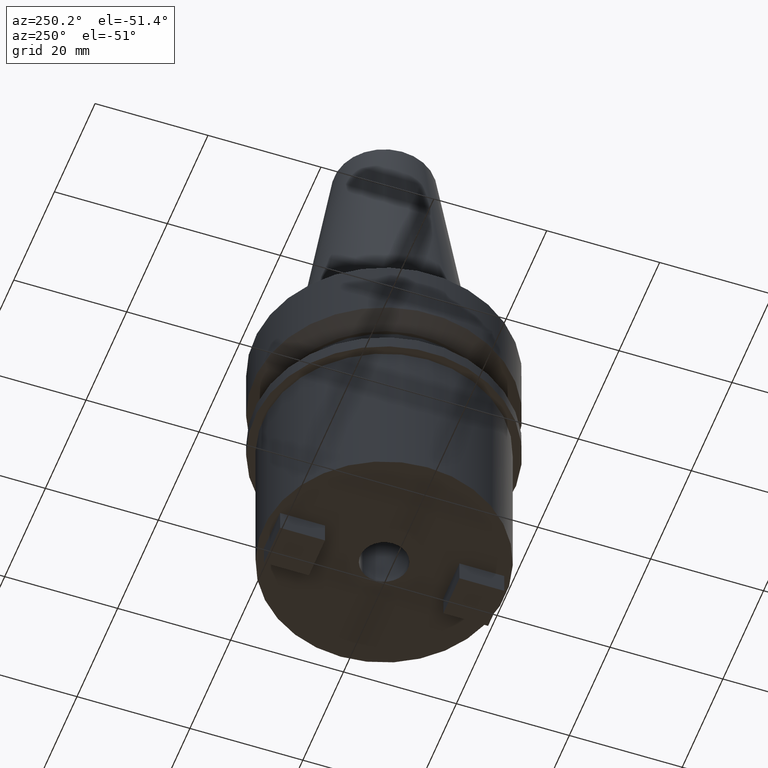
[diagram: clean part render]
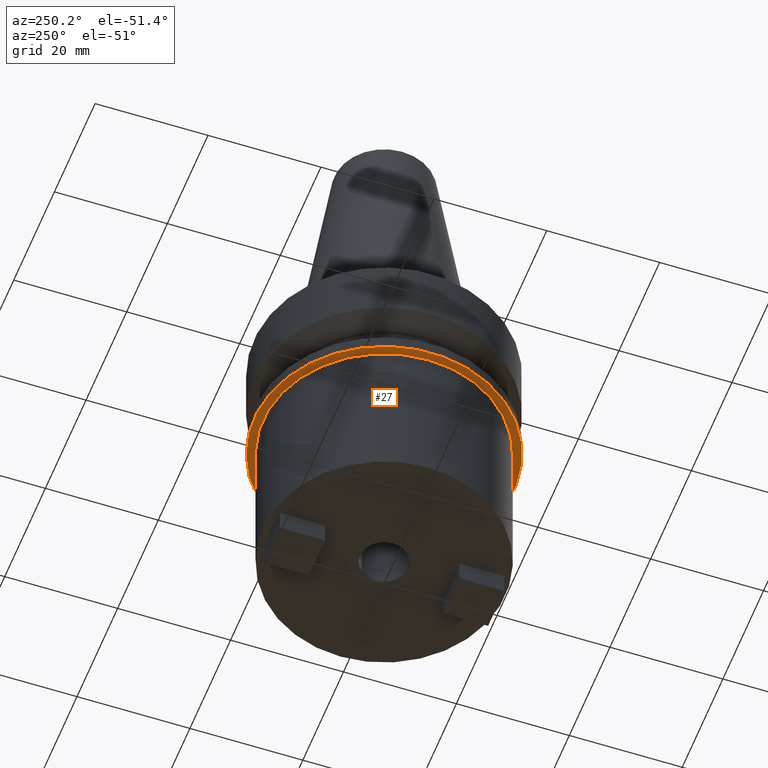
[diagram: same view with one face highlighted and labeled with its STEP entity id]
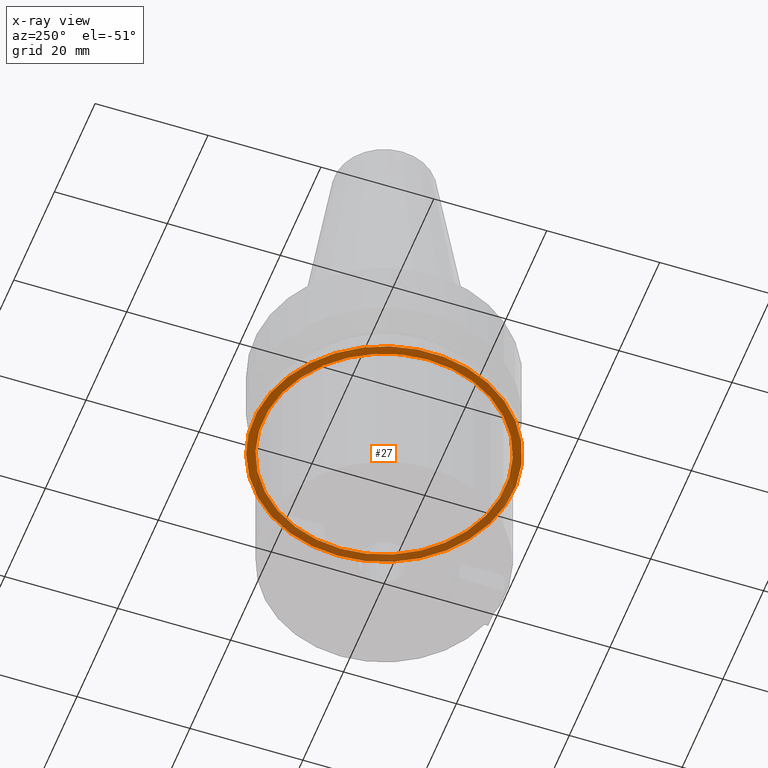
[diagram: x-ray of the same camera — body ghosted, the highlighted face saturated]
A machine part, auxiliary view. The second image highlights one B-rep face of the part: STEP entity #27.
The next image is the same camera in x-ray: the body ghosted, the highlighted face saturated — about 41% of this face is hidden behind the body in this view.
In plain terms, the highlighted planar face has unit normal (0, -0, 1).
Its self-contained STEP definition (entity closure, byte-faithful):
#16 = DIRECTION ( 'NONE',  ( 0.000000000000000000, 0.000000000000000000, -1.000000000000000000 ) ) ;
#27 = ADVANCED_FACE ( 'NONE', ( #501, #495 ), #453, .F. ) ;
#46 = VERTEX_POINT ( 'NONE', #304 ) ;
#71 = CARTESIAN_POINT ( 'NONE',  ( 0.000000000000000000, 22.99999999999998934, -22.00000000000000000 ) ) ;
#76 = DIRECTION ( 'NONE',  ( 1.000000000000000000, 0.000000000000000000, 0.000000000000000000 ) ) ;
#91 = EDGE_CURVE ( 'NONE', #364, #364, #188, .T. ) ;
#157 = EDGE_LOOP ( 'NONE', ( #667 ) ) ;
#186 = EDGE_CURVE ( 'NONE', #46, #46, #422, .T. ) ;
#188 = CIRCLE ( 'NONE', #548, 21.44999999999999929 ) ;
#193 = EDGE_LOOP ( 'NONE', ( #306 ) ) ;
#240 = CARTESIAN_POINT ( 'NONE',  ( 0.000000000000000000, 0.000000000000000000, -21.99999999999999289 ) ) ;
#243 = CARTESIAN_POINT ( 'NONE',  ( 0.000000000000000000, 0.000000000000000000, -22.00000000000000000 ) ) ;
#245 = AXIS2_PLACEMENT_3D ( 'NONE', #71, #492, #394 ) ;
#304 = CARTESIAN_POINT ( 'NONE',  ( 22.99999999999998934, 0.000000000000000000, -21.99999999999999289 ) ) ;
#306 = ORIENTED_EDGE ( 'NONE', *, *, #91, .F. ) ;
#364 = VERTEX_POINT ( 'NONE', #403 ) ;
#394 = DIRECTION ( 'NONE',  ( 1.000000000000000000, 0.000000000000000000, 0.000000000000000000 ) ) ;
#403 = CARTESIAN_POINT ( 'NONE',  ( 21.44999999999999929, 0.000000000000000000, -22.00000000000000000 ) ) ;
#410 = AXIS2_PLACEMENT_3D ( 'NONE', #240, #449, #645 ) ;
#422 = CIRCLE ( 'NONE', #410, 22.99999999999998934 ) ;
#449 = DIRECTION ( 'NONE',  ( -0.000000000000000000, -0.000000000000000000, 1.000000000000000000 ) ) ;
#453 = PLANE ( 'NONE',  #245 ) ;
#492 = DIRECTION ( 'NONE',  ( 0.000000000000000000, -0.000000000000000000, 1.000000000000000000 ) ) ;
#495 = FACE_BOUND ( 'NONE', #193, .T. ) ;
#501 = FACE_OUTER_BOUND ( 'NONE', #157, .T. ) ;
#548 = AXIS2_PLACEMENT_3D ( 'NONE', #243, #16, #76 ) ;
#645 = DIRECTION ( 'NONE',  ( 1.000000000000000000, 0.000000000000000000, 0.000000000000000000 ) ) ;
#667 = ORIENTED_EDGE ( 'NONE', *, *, #186, .F. ) ;